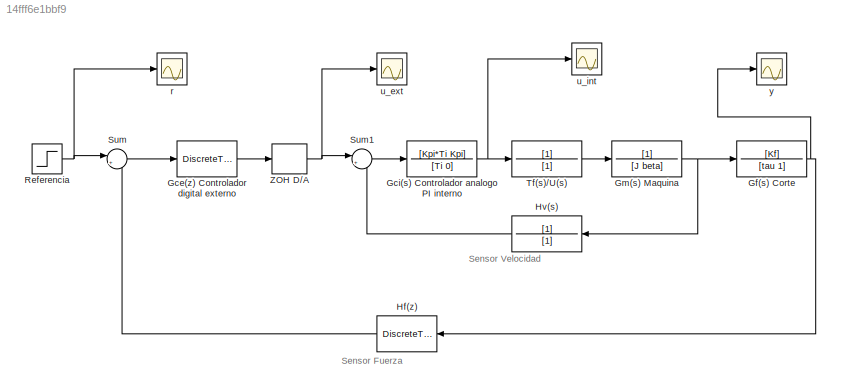
MODEL slx_14fff6e1bbf9
KIND model
CONFIG AbsTol = auto
CONFIG FixedStep = auto
CONFIG MaxStep = auto
CONFIG MinStep = auto
CONFIG RelTol = 1e-3
CONFIG SampleTimeConstraint = Unconstrained
CONFIG Solver = ode45
CONFIG SolverMode = Auto
CONFIG SolverName = ode45
CONFIG StartTime = 0.0
CONFIG StopTime = 10.0
BLOCK [DiscreteTransferFcn]  Hf(z) 
  Denominator = [1]
  InputPortMap = u0
  Ports = [1, 1]
  SampleTime = T
BLOCK [DiscreteTransferFcn] Gce(z) Controlador digital externo
  Denominator = [1]
  InputPortMap = u0
  Numerator = [Kpe]
  Ports = [1, 1]
  SampleTime = T
BLOCK [TransferFcn] Gci(s) Controlador analogo PI interno
  Denominator = [Ti 0]
  Numerator = [Kpi*Ti Kpi]
BLOCK [TransferFcn] Gf(s) Corte
  Denominator = [tau 1]
  Numerator = [Kf]
BLOCK [TransferFcn] Gm(s) Maquina
  Denominator = [J beta]
BLOCK [TransferFcn] Hv(s)
  Denominator = [1]
BLOCK [Step] Referencia
  SampleTime = T
BLOCK [Sum] Sum
  IconShape = round
  InputSameDT = off
  Inputs = |+-
  OutDataTypeStr = Inherit: Inherit via internal rule
  Ports = [2, 1]
  SaturateOnIntegerOverflow = off
BLOCK [Sum] Sum1
  IconShape = round
  InputSameDT = off
  Inputs = |+-
  OutDataTypeStr = Inherit: Inherit via internal rule
  Ports = [2, 1]
  SaturateOnIntegerOverflow = off
BLOCK [TransferFcn] Tf(s)//U(s)
  Denominator = [1]
BLOCK [ZeroOrderHold] ZOH D//A
  SampleTime = T
BLOCK [Scope] r 
  Floating = off
  LimitDataPoints = off
  NumInputPorts = 1
  Ports = [1]
  SaveName = r
  SaveToWorkspace = on
BLOCK [Scope] u_ext
  DataFormat = StructureWithTime
  Floating = off
  LimitDataPoints = off
  NumInputPorts = 1
  Ports = [1]
  SaveName = u
  SaveToWorkspace = on
BLOCK [Scope] u_int 
  Floating = off
  LimitDataPoints = off
  NumInputPorts = 1
  Ports = [1]
  SaveName = u_int
  SaveToWorkspace = on
BLOCK [Scope] y 
  DataFormat = StructureWithTime
  Floating = off
  LimitDataPoints = off
  NumInputPorts = 1
  Ports = [1]
  SaveName = y
  SaveToWorkspace = on
ANNOTATION (root): Sensor Fuerza
ANNOTATION (root): Sensor Velocidad
LINE  Hf(z) :1 -> Sum:2
LINE Gce(z) Controlador digital externo:1 -> ZOH D//A:1
NET Gci(s) Controlador analogo PI interno:1 -> Tf(s)//U(s):1, u_int :1
NET Gf(s) Corte:1 ->  Hf(z) :1, y :1
NET Gm(s) Maquina:1 -> Gf(s) Corte:1, Hv(s):1
LINE Hv(s):1 -> Sum1:2
NET Referencia:1 -> Sum:1, r :1
LINE Sum1:1 -> Gci(s) Controlador analogo PI interno:1
LINE Sum:1 -> Gce(z) Controlador digital externo:1
LINE Tf(s)//U(s):1 -> Gm(s) Maquina:1
NET ZOH D//A:1 -> Sum1:1, u_ext:1
note: NET lines group one-source signal fan-out (src -> all destinations, sorted); 1:1 wires keep LINE
